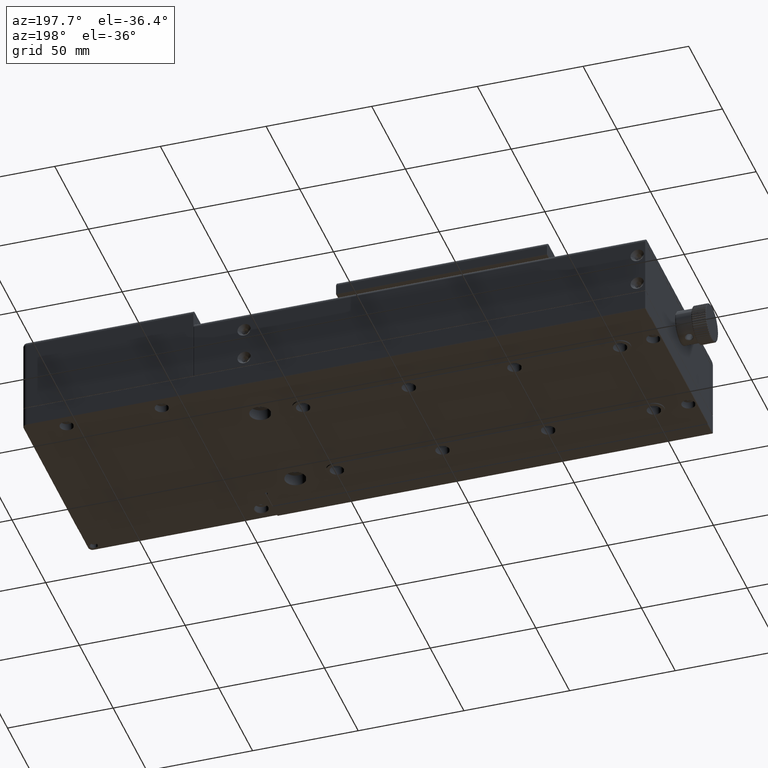
[diagram: clean part render]
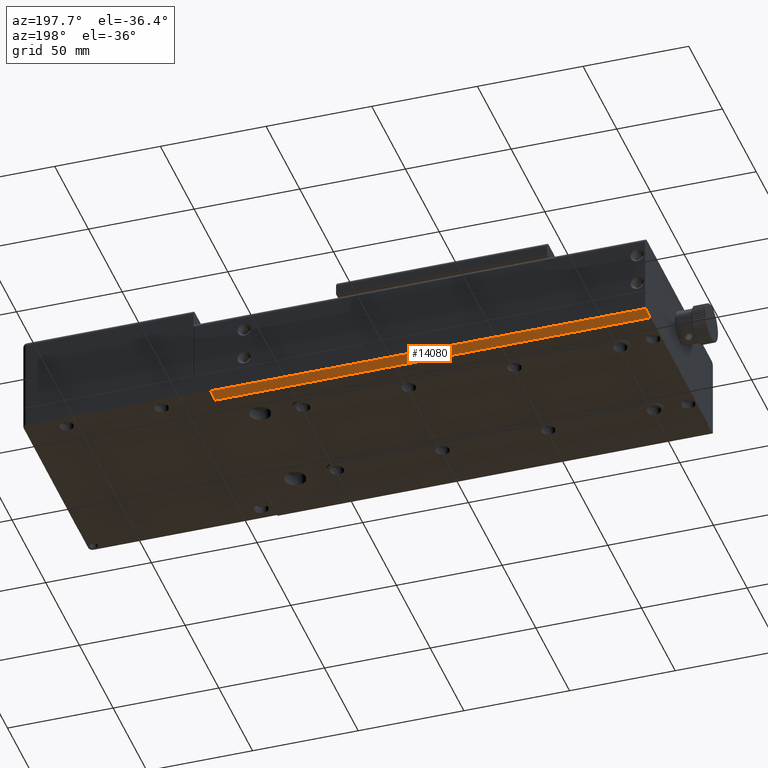
[diagram: same view with one face highlighted and labeled with its STEP entity id]
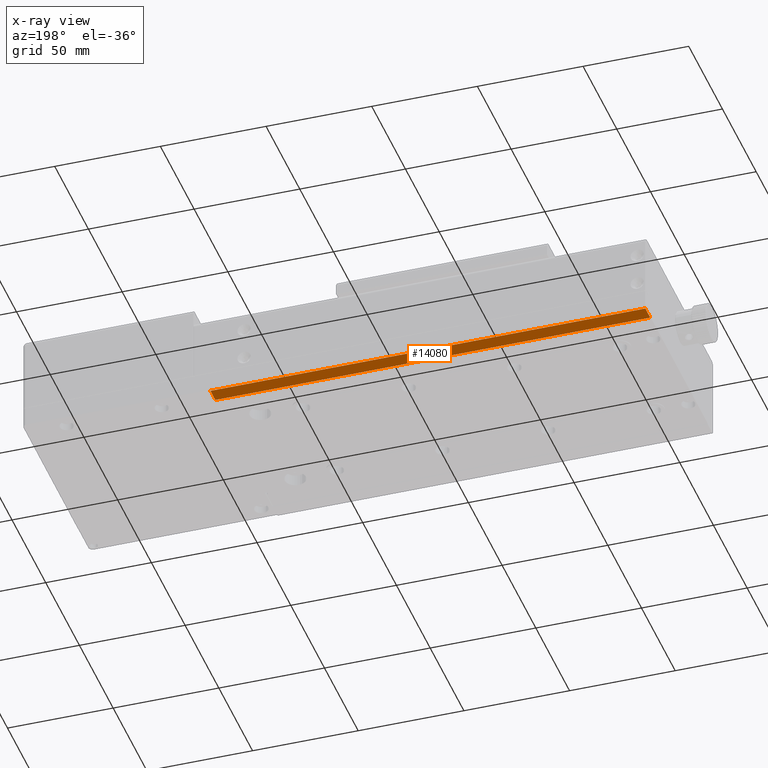
[diagram: x-ray of the same camera — body ghosted, the highlighted face saturated]
A machine part, auxiliary view. The second image highlights one B-rep face of the part: STEP entity #14080.
The next image is the same camera in x-ray: the body ghosted, the highlighted face saturated — about 0% of this face is hidden behind the body in this view.
In plain terms, the highlighted planar face has unit normal (0, 0, 1).
Its self-contained STEP definition (entity closure, byte-faithful):
#3778 = CARTESIAN_POINT ( 'NONE',  ( 126.0392087997099821, 52.49424858742450084, -5.000000000000000000 ) ) ;
#4892 = DIRECTION ( 'NONE',  ( 1.000000000000000000, 0.000000000000000000, 0.000000000000000000 ) ) ;
#5458 = CARTESIAN_POINT ( 'NONE',  ( -168.9607912002899752, 59.99424858742450084, -5.000000000000000000 ) ) ;
#5620 = EDGE_CURVE ( 'NONE', #38370, #25921, #26037, .T. ) ;
#9890 = DIRECTION ( 'NONE',  ( 1.000000000000000000, 0.000000000000000000, 0.000000000000000000 ) ) ;
#12179 = DIRECTION ( 'NONE',  ( 0.000000000000000000, 0.000000000000000000, 1.000000000000000000 ) ) ;
#12834 = EDGE_LOOP ( 'NONE', ( #71444, #56426, #58778, #58863 ) ) ;
#13393 = CARTESIAN_POINT ( 'NONE',  ( 37.03920879970985425, 59.79424858742449800, -5.000000000000000000 ) ) ;
#14080 = ADVANCED_FACE ( 'NONE', ( #68092 ), #69543, .F. ) ;
#21070 = AXIS2_PLACEMENT_3D ( 'NONE', #5458, #12179, #35423 ) ;
#24999 = CARTESIAN_POINT ( 'NONE',  ( 37.03920879970985425, 52.49424858742450084, -5.000000000000000000 ) ) ;
#25921 = VERTEX_POINT ( 'NONE', #13393 ) ;
#26037 = LINE ( 'NONE', #66144, #57949 ) ;
#31649 = DIRECTION ( 'NONE',  ( 0.000000000000000000, 1.000000000000000000, 0.000000000000000000 ) ) ;
#32942 = VECTOR ( 'NONE', #9890, 1000.000000000000000 ) ;
#33333 = EDGE_CURVE ( 'NONE', #70613, #44181, #38191, .T. ) ;
#33870 = LINE ( 'NONE', #73625, #32942 ) ;
#35423 = DIRECTION ( 'NONE',  ( 1.000000000000000000, 0.000000000000000000, 0.000000000000000000 ) ) ;
#37593 = VECTOR ( 'NONE', #4892, 1000.000000000000000 ) ;
#37868 = VECTOR ( 'NONE', #72302, 1000.000000000000000 ) ;
#38191 = LINE ( 'NONE', #44527, #37868 ) ;
#38370 = VERTEX_POINT ( 'NONE', #24999 ) ;
#44181 = VERTEX_POINT ( 'NONE', #66218 ) ;
#44527 = CARTESIAN_POINT ( 'NONE',  ( -168.7607912002899866, 59.99424858742450084, -5.000000000000000000 ) ) ;
#47463 = EDGE_CURVE ( 'NONE', #70613, #38370, #73905, .T. ) ;
#48272 = EDGE_CURVE ( 'NONE', #44181, #25921, #33870, .T. ) ;
#56426 = ORIENTED_EDGE ( 'NONE', *, *, #5620, .F. ) ;
#57949 = VECTOR ( 'NONE', #31649, 1000.000000000000000 ) ;
#58778 = ORIENTED_EDGE ( 'NONE', *, *, #47463, .F. ) ;
#58863 = ORIENTED_EDGE ( 'NONE', *, *, #33333, .T. ) ;
#63425 = CARTESIAN_POINT ( 'NONE',  ( -168.7607912002899866, 52.49424858742450084, -5.000000000000000000 ) ) ;
#66144 = CARTESIAN_POINT ( 'NONE',  ( 37.03920879970985425, 52.49424858742450084, -5.000000000000000000 ) ) ;
#66218 = CARTESIAN_POINT ( 'NONE',  ( -168.7607912002899866, 59.79424858742449800, -5.000000000000000000 ) ) ;
#68092 = FACE_OUTER_BOUND ( 'NONE', #12834, .T. ) ;
#69543 = PLANE ( 'NONE',  #21070 ) ;
#70613 = VERTEX_POINT ( 'NONE', #63425 ) ;
#71444 = ORIENTED_EDGE ( 'NONE', *, *, #48272, .T. ) ;
#72302 = DIRECTION ( 'NONE',  ( -1.224646799147351975E-16, 1.000000000000000000, 0.000000000000000000 ) ) ;
#73625 = CARTESIAN_POINT ( 'NONE',  ( -168.9607912002899752, 59.79424858742449800, -5.000000000000000000 ) ) ;
#73905 = LINE ( 'NONE', #3778, #37593 ) ;